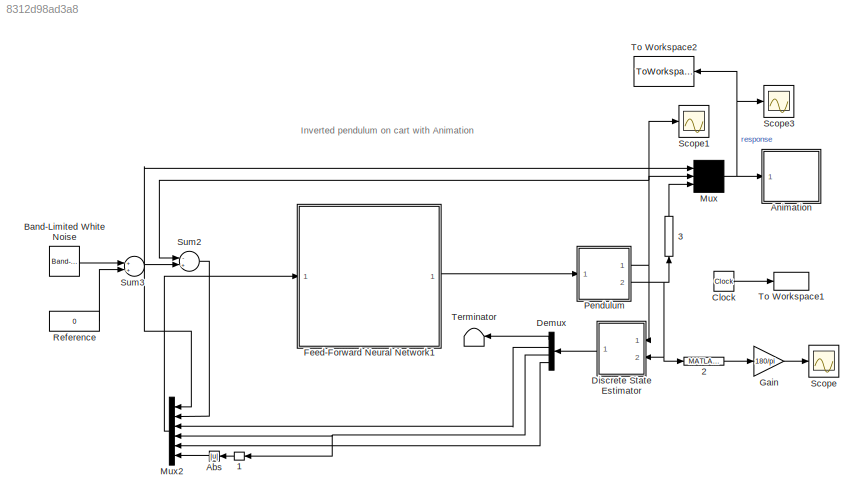
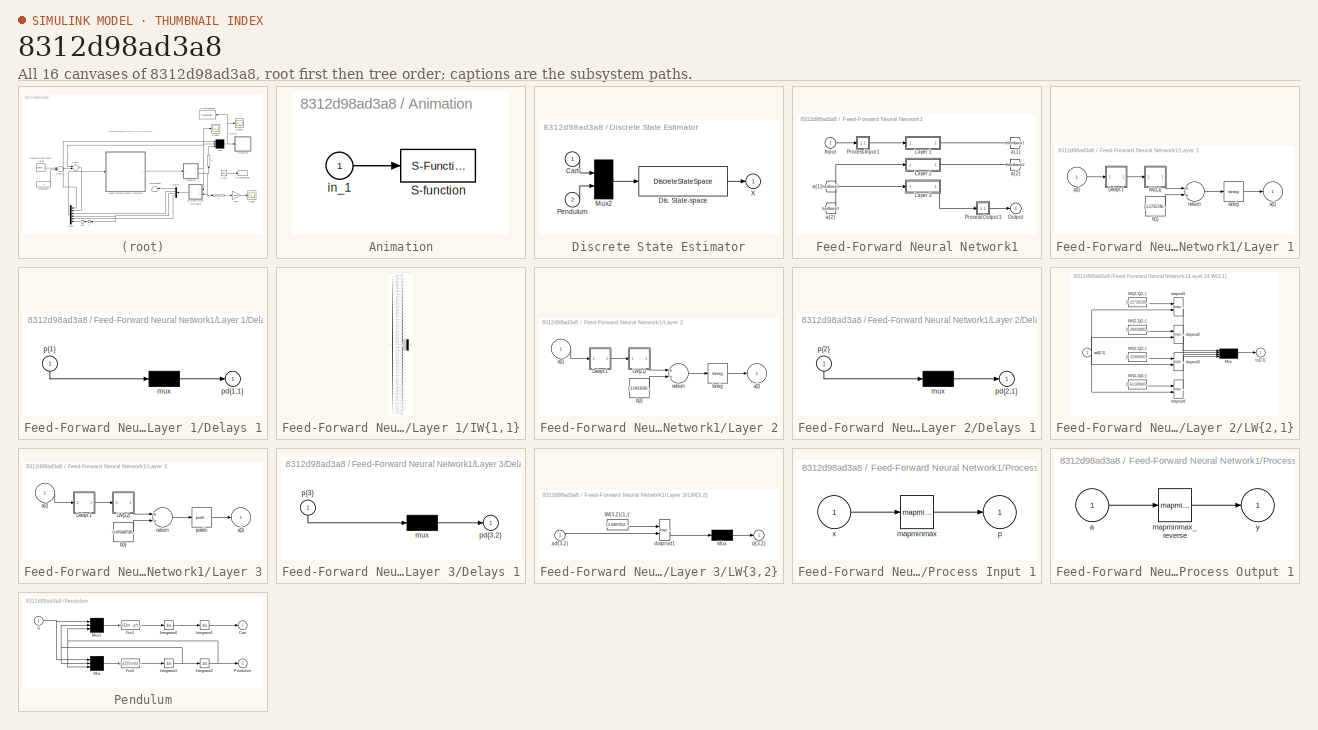
[diagram: thumbnail index - all 16 canvases of the model, root first then tree order]
MODEL slx_8312d98ad3a8
KIND model
BLOCK [MATLABFcn]  1
  MATLABFcn = wrapToPi
  Ports = [1, 1]
BLOCK [MATLABFcn]  2
  MATLABFcn = wrapTo2Pi
  Ports = [1, 1]
BLOCK [MATLABFcn]  3
  MATLABFcn = wrapToPi
  Ports = [1, 1]
BLOCK [Abs] Abs
  SaturateOnIntegerOverflow = off
BLOCK [SubSystem] Animation
  FunctionWithSeparateData = off
  MaskHideContents = off
  MinAlgLoopOccurrences = off
  Opaque = off
  Ports = [1]
  PropExecContextOutsideSubsystem = off
  RTWSystemCode = Auto
  RequestExecContextInheritance = off
BLOCK [S-Function] Animation/S-function
  DeleteFcn = pendan([],[],[],'DeleteBlock');
  EnableBusSupport = off
  FunctionName = pendan
  Parameters = RefBlock
  Ports = [1]
BLOCK [Inport] Animation/in_1
  IconDisplay = Port number
BLOCK [Reference] Band-Limited White Noise  REF=simulink/Sources/Band-Limited
White Noise
  Cov = [noisePower]
  Ports = [0, 1]
  SourceBlock = simulink/Sources/Band-Limited\nWhite Noise
  SourceType = Band-Limited White Noise.
  Ts = 10
  VectorParams1D = on
  seed = [seed]
BLOCK [Clock] Clock
BLOCK [Demux] Demux
  DisplayOption = bar
  Ports = [1, 4]
BLOCK [SubSystem] Discrete State Estimator
  FunctionWithSeparateData = off
  MaskHideContents = off
  MinAlgLoopOccurrences = off
  Opaque = off
  Ports = [2, 1]
  PropExecContextOutsideSubsystem = off
  RTWSystemCode = Auto
  RequestExecContextInheritance = off
BLOCK [Inport] Discrete State Estimator/Cart
  IconDisplay = Port number
BLOCK [DiscreteStateSpace] Discrete State Estimator/Dis. State-space
  A = zeros(2)
  B = -eye(2)/Ts
  C = [0 0; 1 0; 0 0; 0 1]
  D = [1 0; 1/Ts 0; 0 1; 0 1/Ts]
  SampleTime = Ts
BLOCK [Mux] Discrete State Estimator/Mux2
  Inputs = 2
  Ports = [2, 1]
BLOCK [Inport] Discrete State Estimator/Pendulum
  IconDisplay = Port number
  Port = 2
BLOCK [Outport] Discrete State Estimator/X
  IconDisplay = Port number
  InitialOutput = 0
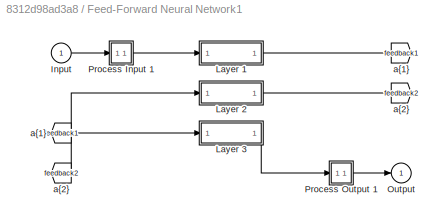
BLOCK [SubSystem] Feed-Forward Neural Network1
  FunctionWithSeparateData = off
  MaskHideContents = off
  MinAlgLoopOccurrences = off
  Opaque = off
  Ports = [1, 1]
  PropExecContextOutsideSubsystem = off
  RTWSystemCode = Auto
  RequestExecContextInheritance = off
BLOCK [From] Feed-Forward Neural Network1/ a{1} 
  GotoTag = feedback1
BLOCK [From] Feed-Forward Neural Network1/ a{2} 
  GotoTag = feedback2
BLOCK [Inport] Feed-Forward Neural Network1/Input
  IconDisplay = Port number
  PortDimensions = 6
BLOCK [SubSystem] Feed-Forward Neural Network1/Layer 1
  FunctionWithSeparateData = off
  MaskHideContents = off
  MinAlgLoopOccurrences = off
  Opaque = off
  Ports = [1, 1]
  PropExecContextOutsideSubsystem = off
  RTWSystemCode = Auto
  RequestExecContextInheritance = off
BLOCK [SubSystem] Feed-Forward Neural Network1/Layer 1/Delays 1
  FunctionWithSeparateData = off
  MaskHideContents = off
  MinAlgLoopOccurrences = off
  Opaque = off
  Ports = [1, 1]
  PropExecContextOutsideSubsystem = off
  RTWSystemCode = Auto
  RequestExecContextInheritance = off
BLOCK [Mux] Feed-Forward Neural Network1/Layer 1/Delays 1/mux
  Inputs = 1
  Ports = [1, 1]
BLOCK [Outport] Feed-Forward Neural Network1/Layer 1/Delays 1/pd{1,1}
  IconDisplay = Port number
BLOCK [Inport] Feed-Forward Neural Network1/Layer 1/Delays 1/p{1}
  IconDisplay = Port number
  PortDimensions = 6
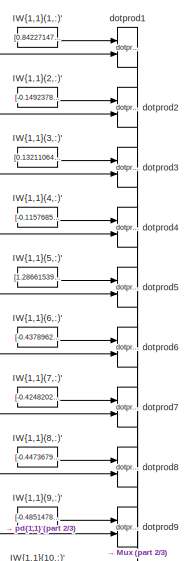
[diagram: Feed-Forward Neural Network1/Layer 1/IW{1,1} - part 1/3, top center region]
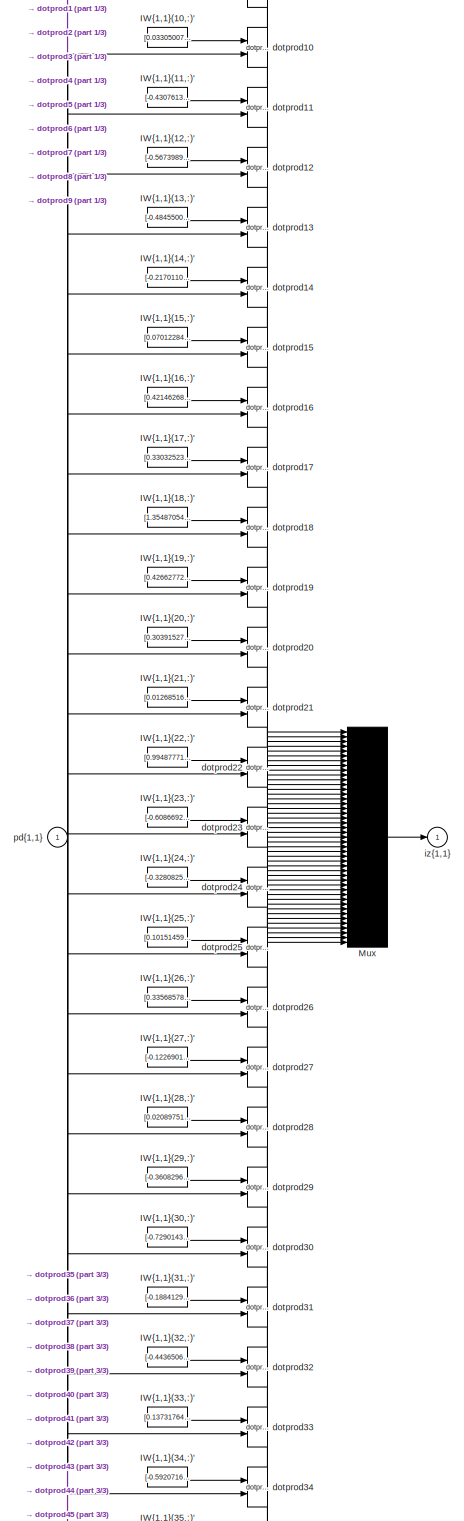
[diagram: Feed-Forward Neural Network1/Layer 1/IW{1,1} - part 2/3, full width, middle band]
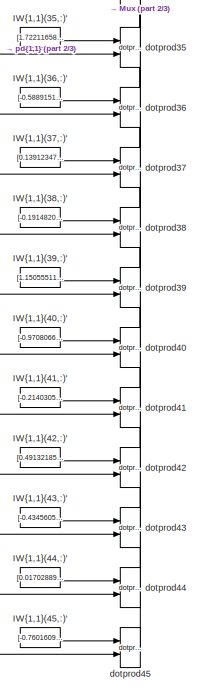
[diagram: Feed-Forward Neural Network1/Layer 1/IW{1,1} - part 3/3, bottom center region]
BLOCK [SubSystem] Feed-Forward Neural Network1/Layer 1/IW{1,1}
  FunctionWithSeparateData = off
  MaskHideContents = off
  MinAlgLoopOccurrences = off
  Opaque = off
  Ports = [1, 1]
  PropExecContextOutsideSubsystem = off
  RTWSystemCode = Auto
  RequestExecContextInheritance = off
BLOCK [Constant] Feed-Forward Neural Network1/Layer 1/IW{1,1}/IW{1,1}(1,:)'
  Value = [0.84227147824054549030137195586576126515865325927734375;0.06487427549836476126099427119697793386876583099365234375;0.16547979048669725354869797229184769093990325927734375;1.102066528263456302028089339728467166423797607421875;0.49259517334991442805147698891232721507549285888671875;-0.272176103875577724000578427876462228596210479736328125]
BLOCK [Constant] Feed-Forward Neural Network1/Layer 1/IW{1,1}/IW{1,1}(10,:)'
  Value = [0.03305007618415702064229577672449522651731967926025390625;1.0170563445854501338772024610079824924468994140625;0.279931382798406624967668676617904566228389739990234375;0.426941937985293173962730861603631637990474700927734375;-1.5403738480250581677211130227078683674335479736328125;-0.91567469693016079190783784724771976470947265625]
BLOCK [Constant] Feed-Forward Neural Network1/Layer 1/IW{1,1}/IW{1,1}(11,:)'
  Value = [-0.430761378274666040244511577839148230850696563720703125;3.4100337146199013460545756970532238483428955078125;-0.9436086074396683454068579521845094859600067138671875;-3.361420006301363283540695192641578614711761474609375;-3.569707650142730503972643418819643557071685791015625;-1.7836434418088156217407913572969846427440643310546875]
BLOCK [Constant] Feed-Forward Neural Network1/Layer 1/IW{1,1}/IW{1,1}(12,:)'
  Value = [-0.5673989996097008603470612797536887228488922119140625;-1.41580995779519458466211290215142071247100830078125;1.9873570195839664886960918011027388274669647216796875;1.3572415823679129243117813530261628329753875732421875;1.0574804788789748943855784091283567249774932861328125;1.2123627937006260513186362004489637911319732666015625]
BLOCK [Constant] Feed-Forward Neural Network1/Layer 1/IW{1,1}/IW{1,1}(13,:)'
  Value = [-0.48455004135934187647904991536051966249942779541015625;-0.7797168963881688785733103941311128437519073486328125;2.498924318770319619176234482438303530216217041015625;-1.7260272854251688112725560131366364657878875732421875;2.327445972270126173242488221148960292339324951171875;-0.05519446440998605762917605943584931083023548126220703125]
BLOCK [Constant] Feed-Forward Neural Network1/Layer 1/IW{1,1}/IW{1,1}(14,:)'
  Value = [-0.21701101301024527945315867327735759317874908447265625;-0.08850209990518463631925527579369372688233852386474609375;1.269844430507898636051322682760655879974365234375;0.8399275689099445774132846054271794855594635009765625;-0.25354230062065064021936677818302996456623077392578125;-0.6468052937445747385680760999093763530254364013671875]
BLOCK [Constant] Feed-Forward Neural Network1/Layer 1/IW{1,1}/IW{1,1}(15,:)'
  Value = [0.07012284715927970257798307329721865244209766387939453125;-0.426352730645800981346127400684054009616374969482421875;-0.462449000988150393798292725477949716150760650634765625;-1.848085497564675439008397006546147167682647705078125;-2.454998577026266115552743940497748553752899169921875;0.17757016677518588920747788506560027599334716796875]
BLOCK [Constant] Feed-Forward Neural Network1/Layer 1/IW{1,1}/IW{1,1}(16,:)'
  Value = [0.4214626870610287401319737909943796694278717041015625;2.093231886567525013020940605201758444309234619140625;0.141001471649424725551824622016283683478832244873046875;0.50265377695913515676551241995184682309627532958984375;-0.44469249994842086071145104142487980425357818603515625;-2.61912069499532496053006980218924582004547119140625]
BLOCK [Constant] Feed-Forward Neural Network1/Layer 1/IW{1,1}/IW{1,1}(17,:)'
  Value = [0.33032523232557242653939511001226492226123809814453125;4.676102860776463643333045183680951595306396484375;-0.55133479214566361026328422667575068771839141845703125;0.41738439187882947489782736738561652600765228271484375;-2.88390872632815131737515912391245365142822265625;0.559538075820381397562641723197884857654571533203125]
BLOCK [Constant] Feed-Forward Neural Network1/Layer 1/IW{1,1}/IW{1,1}(18,:)'
  Value = [1.354870546341602643991564036696217954158782958984375;1.76135701700342650610764394514262676239013671875;0.2498693130782637938924750642399885691702365875244140625;0.018656499881086315018041688063021865673363208770751953125;-0.98870833590241102850626475628814660012722015380859375;-1.356004791091452776896630894043482840061187744140625]
BLOCK [Constant] Feed-Forward Neural Network1/Layer 1/IW{1,1}/IW{1,1}(19,:)'
  Value = [0.42662772549766503349388813148834742605686187744140625;-4.7381878692336609759649945772252976894378662109375;-1.5030142946332050168933847089647315442562103271484375;-2.29340533164774029728505411185324192047119140625;-0.444288784337299291760103869819431565701961517333984375;1.437081857744058055459390743635594844818115234375]
BLOCK [Constant] Feed-Forward Neural Network1/Layer 1/IW{1,1}/IW{1,1}(2,:)'
  Value = [-0.1492378738459924913950516156546655111014842987060546875;-0.58532240022470827245371083336067385971546173095703125;0.462664738325598789980830360946129076182842254638671875;1.91420588056120788422731493483297526836395263671875;-1.443266540980558954032630936126224696636199951171875;0.1477060064733095312572430657382938079535961151123046875]
BLOCK [Constant] Feed-Forward Neural Network1/Layer 1/IW{1,1}/IW{1,1}(20,:)'
  Value = [0.30391527272730389785948545977589674293994903564453125;-0.444187486126631114746743378418614156544208526611328125;-0.022000359677070625841199813521598116494715213775634765625;-0.5972509067636926349820214454666711390018463134765625;2.6133128367743925224431222886778414249420166015625;2.22748035673238309328780815121717751026153564453125]
BLOCK [Constant] Feed-Forward Neural Network1/Layer 1/IW{1,1}/IW{1,1}(21,:)'
  Value = [0.01268516930794892638711957033592625521123409271240234375;4.59450107657331141552958797547034919261932373046875;-0.93306119762650896465316918693133629858493804931640625;-1.6092357280682261233550889301113784313201904296875;-3.214514491239682580925318688969127833843231201171875;-0.6781370341470525087146370424306951463222503662109375]
BLOCK [Constant] Feed-Forward Neural Network1/Layer 1/IW{1,1}/IW{1,1}(22,:)'
  Value = [0.994877715005721530161508781020529568195343017578125;-2.5852327063540183615941714379005134105682373046875;-0.4537861220633285785908128673327155411243438720703125;0.74245142888689319438100255865720100700855255126953125;-1.833503204946538289732416160404682159423828125;15.454823990822948331924635567702353000640869140625]
BLOCK [Constant] Feed-Forward Neural Network1/Layer 1/IW{1,1}/IW{1,1}(23,:)'
  Value = [-0.60866929997868346458034238821710459887981414794921875;-0.97057598832021951817949911855976097285747528076171875;-1.41630044446994940443573796073906123638153076171875;1.6145332171968866941114129076595418155193328857421875;1.9343143141262479911546279254253022372722625732421875;3.68592187714530350461927810101769864559173583984375]
BLOCK [Constant] Feed-Forward Neural Network1/Layer 1/IW{1,1}/IW{1,1}(24,:)'
  Value = [-0.32808252806051185768154709876398555934429168701171875;-3.42123638500376170412664578179828822612762451171875;-0.904267633019632643964769158628769218921661376953125;0.74638609472593231419779158386518247425556182861328125;1.925961651847787781122178785153664648532867431640625;-0.1414651721659340444237074052580283023416996002197265625]
BLOCK [Constant] Feed-Forward Neural Network1/Layer 1/IW{1,1}/IW{1,1}(25,:)'
  Value = [0.1015145952320345157371406230595312081277370452880859375;-0.332514223086164684151100345843588002026081085205078125;2.281582187239048042926015114062465727329254150390625;0.83332205829804639751756667465087957680225372314453125;-1.74625792582558414522964085335843265056610107421875;0.9113021358531601112673570241895504295825958251953125]
BLOCK [Constant] Feed-Forward Neural Network1/Layer 1/IW{1,1}/IW{1,1}(26,:)'
  Value = [0.33568578942289628574968674001866020262241363525390625;2.3543740308923606363578073796816170215606689453125;1.351961238632386486102632261463440954685211181640625;1.7606296753255026299456176275270991027355194091796875;-0.41700357843252511269582782915676943957805633544921875;1.0395595474903343014005940858623944222927093505859375]
BLOCK [Constant] Feed-Forward Neural Network1/Layer 1/IW{1,1}/IW{1,1}(27,:)'
  Value = [-0.122690101827504116638323239385499618947505950927734375;-4.38180574480759066346990948659367859363555908203125;-0.93975792619900133662014241053839214146137237548828125;-1.477176900329489672714089465443976223468780517578125;-0.1684666325636204053939337654810515232384204864501953125;0.372092735345911085342862634206539951264858245849609375]
BLOCK [Constant] Feed-Forward Neural Network1/Layer 1/IW{1,1}/IW{1,1}(28,:)'
  Value = [0.0208975155955787202100015775840802234597504138946533203125;1.251660217050768242330605062306858599185943603515625;1.1691366816001658168744370414060540497303009033203125;2.7047155750761060488684961455874145030975341796875;2.570977437632034234837874464574269950389862060546875;-0.1415574810387700832592372535145841538906097412109375]
BLOCK [Constant] Feed-Forward Neural Network1/Layer 1/IW{1,1}/IW{1,1}(29,:)'
  Value = [-0.360829663811210121782124815581482835114002227783203125;-0.88319440128383386312549419017159380018711090087890625;3.3498526307737837015565673937089741230010986328125;1.233805697106404419827185847680084407329559326171875;-0.10885207267648533413506584111019037663936614990234375;-0.7884649843305184813146979649900458753108978271484375]
BLOCK [Constant] Feed-Forward Neural Network1/Layer 1/IW{1,1}/IW{1,1}(3,:)'
  Value = [0.1321106469977538500071290172854787670075893402099609375;-0.397375057727925751205333426696597598493099212646484375;-0.042944704991947350858350063163015875034034252166748046875;1.599760712104874027517098511452786624431610107421875;0.2558827644516330490631617067265324294567108154296875;0.4060595418232446629502874202444218099117279052734375]
BLOCK [Constant] Feed-Forward Neural Network1/Layer 1/IW{1,1}/IW{1,1}(30,:)'
  Value = [-0.7290143026208630860907078385935164988040924072265625;-1.506358840224149897579764001420699059963226318359375;-0.47719700980047574656595088526955805718898773193359375;0.3448008435778924241077447732095606625080108642578125;0.06901407753184805871082829753504483960568904876708984375;2.197857444031098506087573696277104318141937255859375]
BLOCK [Constant] Feed-Forward Neural Network1/Layer 1/IW{1,1}/IW{1,1}(31,:)'
  Value = [-0.18841291576789931383473231107927858829498291015625;-1.883810688531983856819351785816252231597900390625;-1.528012023680080933019098665681667625904083251953125;-2.989909602536509058978708708309568464756011962890625;-1.5647943251507172579550797308911569416522979736328125;-0.47964740637355018915144455604604445397853851318359375]
BLOCK [Constant] Feed-Forward Neural Network1/Layer 1/IW{1,1}/IW{1,1}(32,:)'
  Value = [-0.443650669627721538912368259843788109719753265380859375;-1.4009311657658527483505395139218308031558990478515625;-2.2726150371821116635828730068169534206390380859375;-0.2245478230346547865448059155824012123048305511474609375;-0.1355220260937668175227344136146712116897106170654296875;1.084261365339057814338730167946778237819671630859375]
BLOCK [Constant] Feed-Forward Neural Network1/Layer 1/IW{1,1}/IW{1,1}(33,:)'
  Value = [0.137317649806484365360148558465880341827869415283203125;-0.55945470154716614441525734946480952203273773193359375;3.618543150025871124597642847220413386821746826171875;3.33383798934054720319863918120972812175750732421875;-0.822871208637542483899096623645164072513580322265625;1.5973819108851479153798891275073401629924774169921875]
BLOCK [Constant] Feed-Forward Neural Network1/Layer 1/IW{1,1}/IW{1,1}(34,:)'
  Value = [-0.592071669418371637760856174281798303127288818359375;-0.83421267712764202162389892691862769424915313720703125;0.86348993686630171051632487433380447328090667724609375;2.150819845230817151104929507710039615631103515625;2.262924582499760361997687141411006450653076171875;-0.0255007571660771405197554173582830117084085941314697265625]
BLOCK [Constant] Feed-Forward Neural Network1/Layer 1/IW{1,1}/IW{1,1}(35,:)'
  Value = [1.7221165898979722275186077240505255758762359619140625;3.29144936960714229456925750127993524074554443359375;-0.70751409013431487693424060125835239887237548828125;-1.0795418691169966773912847202154807746410369873046875;-1.105857120792361314443041919730603694915771484375;-1.502964798220688180663273669779300689697265625]
BLOCK [Constant] Feed-Forward Neural Network1/Layer 1/IW{1,1}/IW{1,1}(36,:)'
  Value = [-0.58891512772877174786145815232885070145130157470703125;-4.9511689644958014611120233894325792789459228515625;-2.23201641639018699692087466246448457241058349609375;1.0115433068301593610982536119990982115268707275390625;2.87365060958359297416109257028438150882720947265625;-0.22953357547706787489261159862508065998554229736328125]
BLOCK [Constant] Feed-Forward Neural Network1/Layer 1/IW{1,1}/IW{1,1}(37,:)'
  Value = [0.139123470369716617511812728480435907840728759765625;-1.289834396248152881270243597100488841533660888671875;0.2722104703413099624498272532946430146694183349609375;0.261716197281477269687144371346221305429935455322265625;-0.797707282571357811917778235510922968387603759765625;0.57652892523213428166428684562561102211475372314453125]
BLOCK [Constant] Feed-Forward Neural Network1/Layer 1/IW{1,1}/IW{1,1}(38,:)'
  Value = [-0.1914820890937098674111638274553115479648113250732421875;7.38545949292279413356254735845141112804412841796875;-0.487500818685457637524649499027873389422893524169921875;0.1196565559715188076239655856625176966190338134765625;0.1946593969480634456203915760852396488189697265625;0.347467836883841030282127348982612602412700653076171875]
BLOCK [Constant] Feed-Forward Neural Network1/Layer 1/IW{1,1}/IW{1,1}(39,:)'
  Value = [1.1505551143686323367631985092884860932826995849609375;0.670927704314908002203310388722456991672515869140625;-0.4107825063660275333177196444012224674224853515625;0.34580825776955259609479753635241650044918060302734375;0.273933720244461442749894786174991168081760406494140625;0.10240294396416320388265575047626043669879436492919921875]
BLOCK [Constant] Feed-Forward Neural Network1/Layer 1/IW{1,1}/IW{1,1}(4,:)'
  Value = [-0.11576850141052537346286754882385139353573322296142578125;-4.54558036892190120425993882236070930957794189453125;-0.092313141273975052314426648081280291080474853515625;0.12126186077174672117706677454407326877117156982421875;0.1615396998211687529245494943097583018243312835693359375;0.10394610992355980683132798958467901684343814849853515625]
BLOCK [Constant] Feed-Forward Neural Network1/Layer 1/IW{1,1}/IW{1,1}(40,:)'
  Value = [-0.9708066404631108259337679555756039917469024658203125;-0.72668604922306612170501693981350399553775787353515625;0.891458005586482915560964102041907608509063720703125;1.253717701823703567498569100280292332172393798828125;0.8892087248039166613722272813902236521244049072265625;0.1584588009797140983891949872486293315887451171875]
BLOCK [Constant] Feed-Forward Neural Network1/Layer 1/IW{1,1}/IW{1,1}(41,:)'
  Value = [-0.214030587285944040587537529063411056995391845703125;0.81855538866011212650874995233607478439807891845703125;0.5267935584121830050463586303521879017353057861328125;-0.369976614021223060291276851785369217395782470703125;0.75418730631755803717197750302148051559925079345703125;0.62987453426894701724592096070409752428531646728515625]
BLOCK [Constant] Feed-Forward Neural Network1/Layer 1/IW{1,1}/IW{1,1}(42,:)'
  Value = [0.491321854398087454196542012141435407102108001708984375;-0.6243604795551085384630596308852545917034149169921875;-0.8073042670592747160895896740839816629886627197265625;-0.4604107257932936736466444926918484270572662353515625;-0.2307547176901788843483842583736986853182315826416015625;-0.11031798080602052414267433277927921153604984283447265625]
BLOCK [Constant] Feed-Forward Neural Network1/Layer 1/IW{1,1}/IW{1,1}(43,:)'
  Value = [-0.434560541377054743161778560534003190696239471435546875;-0.7195817968029818434416711170342750847339630126953125;2.719625083265178044911181132192723453044891357421875;-0.9651400988834157868012653125333599746227264404296875;-1.8899754067195717599503268502303399145603179931640625;0.2358315585990613250100267350717331282794475555419921875]
BLOCK [Constant] Feed-Forward Neural Network1/Layer 1/IW{1,1}/IW{1,1}(44,:)'
  Value = [0.0170288927643164507419459852144427713938057422637939453125;-1.096271515043029776137473163544200360774993896484375;-0.65716506950018771515686921702581457793712615966796875;-2.615029860688120155742808492504991590976715087890625;0.185285386266270502009234633078449405729770660400390625;0.6822539905081999034308637419599108397960662841796875]
BLOCK [Constant] Feed-Forward Neural Network1/Layer 1/IW{1,1}/IW{1,1}(45,:)'
  Value = [-0.76016098814205346201333668432198464870452880859375;0.45662035591078098395456663638469763100147247314453125;-0.69560184134009650502861177301383577287197113037109375;0.05786432331366657411120257847869652323424816131591796875;-0.415050499588511423443293324453406967222690582275390625;0.85467177567879326627320324405445717275142669677734375]
BLOCK [Constant] Feed-Forward Neural Network1/Layer 1/IW{1,1}/IW{1,1}(5,:)'
  Value = [1.286615392073253705262914081686176359653472900390625;-0.63236160984545997099104397420887835323810577392578125;1.0393417445908534890719465693109668791294097900390625;-1.0017921343315656645955868953024037182331085205078125;1.2961703714111709739853495193528942763805389404296875;0.69475220751266686392000337946228682994842529296875]
BLOCK [Constant] Feed-Forward Neural Network1/Layer 1/IW{1,1}/IW{1,1}(6,:)'
  Value = [-0.437896259415833932759909430387779138982295989990234375;-0.055678103401010682615979163756492198444902896881103515625;0.86210316000251119294972568241064436733722686767578125;-1.2571776590128809214519378656405024230480194091796875;1.91653411562610020979491309844888746738433837890625;-1.175738488899714440094612655229866504669189453125]
BLOCK [Constant] Feed-Forward Neural Network1/Layer 1/IW{1,1}/IW{1,1}(7,:)'
  Value = [-0.424820263545935716820167726837098598480224609375;0.0921595173958678903769481394192553125321865081787109375;1.5124409214377152466113329865038394927978515625;2.25606477612466083115805304259993135929107666015625;0.8804375291908701495202649311977438628673553466796875;-0.493414946284316979774331457520020194351673126220703125]
BLOCK [Constant] Feed-Forward Neural Network1/Layer 1/IW{1,1}/IW{1,1}(8,:)'
  Value = [-0.447367958470151594330133093535550870001316070556640625;-0.57162951790862592815756215713918209075927734375;1.068904226705254867368921622983179986476898193359375;-0.36300666989660701489128769026137888431549072265625;0.0233603725425067278165247586230179877020418643951416015625;0.371345504439733409274282394108013249933719635009765625]
BLOCK [Constant] Feed-Forward Neural Network1/Layer 1/IW{1,1}/IW{1,1}(9,:)'
  Value = [-0.485147821115319788365383146810927428305149078369140625;-1.5183877630525406399186749695218168199062347412109375;-3.14651794382773264402430868358351290225982666015625;-1.27616307751824020755293531692586839199066162109375;0.7526174427896663576831315367599017918109893798828125;1.599932614473981384861644983175210654735565185546875]
BLOCK [Mux] Feed-Forward Neural Network1/Layer 1/IW{1,1}/Mux
  Inputs = 45
  Ports = [45, 1]
BLOCK [Reference] Feed-Forward Neural Network1/Layer 1/IW{1,1}/dotprod1  REF=neural/Weight Functions/dotprod
  Ports = [2, 1]
  SourceBlock = neural/Weight Functions/dotprod
  SourceType = DOTPROD
BLOCK [Reference] Feed-Forward Neural Network1/Layer 1/IW{1,1}/dotprod10  REF=neural/Weight Functions/dotprod
  Ports = [2, 1]
  SourceBlock = neural/Weight Functions/dotprod
  SourceType = DOTPROD
BLOCK [Reference] Feed-Forward Neural Network1/Layer 1/IW{1,1}/dotprod11  REF=neural/Weight Functions/dotprod
  Ports = [2, 1]
  SourceBlock = neural/Weight Functions/dotprod
  SourceType = DOTPROD
BLOCK [Reference] Feed-Forward Neural Network1/Layer 1/IW{1,1}/dotprod12  REF=neural/Weight Functions/dotprod
  Ports = [2, 1]
  SourceBlock = neural/Weight Functions/dotprod
  SourceType = DOTPROD
BLOCK [Reference] Feed-Forward Neural Network1/Layer 1/IW{1,1}/dotprod13  REF=neural/Weight Functions/dotprod
  Ports = [2, 1]
  SourceBlock = neural/Weight Functions/dotprod
  SourceType = DOTPROD
BLOCK [Reference] Feed-Forward Neural Network1/Layer 1/IW{1,1}/dotprod14  REF=neural/Weight Functions/dotprod
  Ports = [2, 1]
  SourceBlock = neural/Weight Functions/dotprod
  SourceType = DOTPROD
BLOCK [Reference] Feed-Forward Neural Network1/Layer 1/IW{1,1}/dotprod15  REF=neural/Weight Functions/dotprod
  Ports = [2, 1]
  SourceBlock = neural/Weight Functions/dotprod
  SourceType = DOTPROD
BLOCK [Reference] Feed-Forward Neural Network1/Layer 1/IW{1,1}/dotprod16  REF=neural/Weight Functions/dotprod
  Ports = [2, 1]
  SourceBlock = neural/Weight Functions/dotprod
  SourceType = DOTPROD
BLOCK [Reference] Feed-Forward Neural Network1/Layer 1/IW{1,1}/dotprod17  REF=neural/Weight Functions/dotprod
  Ports = [2, 1]
  SourceBlock = neural/Weight Functions/dotprod
  SourceType = DOTPROD
BLOCK [Reference] Feed-Forward Neural Network1/Layer 1/IW{1,1}/dotprod18  REF=neural/Weight Functions/dotprod
  Ports = [2, 1]
  SourceBlock = neural/Weight Functions/dotprod
  SourceType = DOTPROD
BLOCK [Reference] Feed-Forward Neural Network1/Layer 1/IW{1,1}/dotprod19  REF=neural/Weight Functions/dotprod
  Ports = [2, 1]
  SourceBlock = neural/Weight Functions/dotprod
  SourceType = DOTPROD
BLOCK [Reference] Feed-Forward Neural Network1/Layer 1/IW{1,1}/dotprod2  REF=neural/Weight Functions/dotprod
  Ports = [2, 1]
  SourceBlock = neural/Weight Functions/dotprod
  SourceType = DOTPROD
BLOCK [Reference] Feed-Forward Neural Network1/Layer 1/IW{1,1}/dotprod20  REF=neural/Weight Functions/dotprod
  Ports = [2, 1]
  SourceBlock = neural/Weight Functions/dotprod
  SourceType = DOTPROD
BLOCK [Reference] Feed-Forward Neural Network1/Layer 1/IW{1,1}/dotprod21  REF=neural/Weight Functions/dotprod
  Ports = [2, 1]
  SourceBlock = neural/Weight Functions/dotprod
  SourceType = DOTPROD
BLOCK [Reference] Feed-Forward Neural Network1/Layer 1/IW{1,1}/dotprod22  REF=neural/Weight Functions/dotprod
  Ports = [2, 1]
  SourceBlock = neural/Weight Functions/dotprod
  SourceType = DOTPROD
BLOCK [Reference] Feed-Forward Neural Network1/Layer 1/IW{1,1}/dotprod23  REF=neural/Weight Functions/dotprod
  Ports = [2, 1]
  SourceBlock = neural/Weight Functions/dotprod
  SourceType = DOTPROD
BLOCK [Reference] Feed-Forward Neural Network1/Layer 1/IW{1,1}/dotprod24  REF=neural/Weight Functions/dotprod
  Ports = [2, 1]
  SourceBlock = neural/Weight Functions/dotprod
  SourceType = DOTPROD
BLOCK [Reference] Feed-Forward Neural Network1/Layer 1/IW{1,1}/dotprod25  REF=neural/Weight Functions/dotprod
  Ports = [2, 1]
  SourceBlock = neural/Weight Functions/dotprod
  SourceType = DOTPROD
BLOCK [Reference] Feed-Forward Neural Network1/Layer 1/IW{1,1}/dotprod26  REF=neural/Weight Functions/dotprod
  Ports = [2, 1]
  SourceBlock = neural/Weight Functions/dotprod
  SourceType = DOTPROD
BLOCK [Reference] Feed-Forward Neural Network1/Layer 1/IW{1,1}/dotprod27  REF=neural/Weight Functions/dotprod
  Ports = [2, 1]
  SourceBlock = neural/Weight Functions/dotprod
  SourceType = DOTPROD
BLOCK [Reference] Feed-Forward Neural Network1/Layer 1/IW{1,1}/dotprod28  REF=neural/Weight Functions/dotprod
  Ports = [2, 1]
  SourceBlock = neural/Weight Functions/dotprod
  SourceType = DOTPROD
BLOCK [Reference] Feed-Forward Neural Network1/Layer 1/IW{1,1}/dotprod29  REF=neural/Weight Functions/dotprod
  Ports = [2, 1]
  SourceBlock = neural/Weight Functions/dotprod
  SourceType = DOTPROD
BLOCK [Reference] Feed-Forward Neural Network1/Layer 1/IW{1,1}/dotprod3  REF=neural/Weight Functions/dotprod
  Ports = [2, 1]
  SourceBlock = neural/Weight Functions/dotprod
  SourceType = DOTPROD
BLOCK [Reference] Feed-Forward Neural Network1/Layer 1/IW{1,1}/dotprod30  REF=neural/Weight Functions/dotprod
  Ports = [2, 1]
  SourceBlock = neural/Weight Functions/dotprod
  SourceType = DOTPROD
BLOCK [Reference] Feed-Forward Neural Network1/Layer 1/IW{1,1}/dotprod31  REF=neural/Weight Functions/dotprod
  Ports = [2, 1]
  SourceBlock = neural/Weight Functions/dotprod
  SourceType = DOTPROD
BLOCK [Reference] Feed-Forward Neural Network1/Layer 1/IW{1,1}/dotprod32  REF=neural/Weight Functions/dotprod
  Ports = [2, 1]
  SourceBlock = neural/Weight Functions/dotprod
  SourceType = DOTPROD
BLOCK [Reference] Feed-Forward Neural Network1/Layer 1/IW{1,1}/dotprod33  REF=neural/Weight Functions/dotprod
  Ports = [2, 1]
  SourceBlock = neural/Weight Functions/dotprod
  SourceType = DOTPROD
BLOCK [Reference] Feed-Forward Neural Network1/Layer 1/IW{1,1}/dotprod34  REF=neural/Weight Functions/dotprod
  Ports = [2, 1]
  SourceBlock = neural/Weight Functions/dotprod
  SourceType = DOTPROD
BLOCK [Reference] Feed-Forward Neural Network1/Layer 1/IW{1,1}/dotprod35  REF=neural/Weight Functions/dotprod
  Ports = [2, 1]
  SourceBlock = neural/Weight Functions/dotprod
  SourceType = DOTPROD
BLOCK [Reference] Feed-Forward Neural Network1/Layer 1/IW{1,1}/dotprod36  REF=neural/Weight Functions/dotprod
  Ports = [2, 1]
  SourceBlock = neural/Weight Functions/dotprod
  SourceType = DOTPROD
BLOCK [Reference] Feed-Forward Neural Network1/Layer 1/IW{1,1}/dotprod37  REF=neural/Weight Functions/dotprod
  Ports = [2, 1]
  SourceBlock = neural/Weight Functions/dotprod
  SourceType = DOTPROD
BLOCK [Reference] Feed-Forward Neural Network1/Layer 1/IW{1,1}/dotprod38  REF=neural/Weight Functions/dotprod
  Ports = [2, 1]
  SourceBlock = neural/Weight Functions/dotprod
  SourceType = DOTPROD
BLOCK [Reference] Feed-Forward Neural Network1/Layer 1/IW{1,1}/dotprod39  REF=neural/Weight Functions/dotprod
  Ports = [2, 1]
  SourceBlock = neural/Weight Functions/dotprod
  SourceType = DOTPROD
BLOCK [Reference] Feed-Forward Neural Network1/Layer 1/IW{1,1}/dotprod4  REF=neural/Weight Functions/dotprod
  Ports = [2, 1]
  SourceBlock = neural/Weight Functions/dotprod
  SourceType = DOTPROD
BLOCK [Reference] Feed-Forward Neural Network1/Layer 1/IW{1,1}/dotprod40  REF=neural/Weight Functions/dotprod
  Ports = [2, 1]
  SourceBlock = neural/Weight Functions/dotprod
  SourceType = DOTPROD
BLOCK [Reference] Feed-Forward Neural Network1/Layer 1/IW{1,1}/dotprod41  REF=neural/Weight Functions/dotprod
  Ports = [2, 1]
  SourceBlock = neural/Weight Functions/dotprod
  SourceType = DOTPROD
BLOCK [Reference] Feed-Forward Neural Network1/Layer 1/IW{1,1}/dotprod42  REF=neural/Weight Functions/dotprod
  Ports = [2, 1]
  SourceBlock = neural/Weight Functions/dotprod
  SourceType = DOTPROD
BLOCK [Reference] Feed-Forward Neural Network1/Layer 1/IW{1,1}/dotprod43  REF=neural/Weight Functions/dotprod
  Ports = [2, 1]
  SourceBlock = neural/Weight Functions/dotprod
  SourceType = DOTPROD
BLOCK [Reference] Feed-Forward Neural Network1/Layer 1/IW{1,1}/dotprod44  REF=neural/Weight Functions/dotprod
  Ports = [2, 1]
  SourceBlock = neural/Weight Functions/dotprod
  SourceType = DOTPROD
BLOCK [Reference] Feed-Forward Neural Network1/Layer 1/IW{1,1}/dotprod45  REF=neural/Weight Functions/dotprod
  Ports = [2, 1]
  SourceBlock = neural/Weight Functions/dotprod
  SourceType = DOTPROD
BLOCK [Reference] Feed-Forward Neural Network1/Layer 1/IW{1,1}/dotprod5  REF=neural/Weight Functions/dotprod
  Ports = [2, 1]
  SourceBlock = neural/Weight Functions/dotprod
  SourceType = DOTPROD
BLOCK [Reference] Feed-Forward Neural Network1/Layer 1/IW{1,1}/dotprod6  REF=neural/Weight Functions/dotprod
  Ports = [2, 1]
  SourceBlock = neural/Weight Functions/dotprod
  SourceType = DOTPROD
BLOCK [Reference] Feed-Forward Neural Network1/Layer 1/IW{1,1}/dotprod7  REF=neural/Weight Functions/dotprod
  Ports = [2, 1]
  SourceBlock = neural/Weight Functions/dotprod
  SourceType = DOTPROD
BLOCK [Reference] Feed-Forward Neural Network1/Layer 1/IW{1,1}/dotprod8  REF=neural/Weight Functions/dotprod
  Ports = [2, 1]
  SourceBlock = neural/Weight Functions/dotprod
  SourceType = DOTPROD
BLOCK [Reference] Feed-Forward Neural Network1/Layer 1/IW{1,1}/dotprod9  REF=neural/Weight Functions/dotprod
  Ports = [2, 1]
  SourceBlock = neural/Weight Functions/dotprod
  SourceType = DOTPROD
BLOCK [Outport] Feed-Forward Neural Network1/Layer 1/IW{1,1}/iz{1,1}
  IconDisplay = Port number
BLOCK [Inport] Feed-Forward Neural Network1/Layer 1/IW{1,1}/pd{1,1}
  IconDisplay = Port number
  PortDimensions = 6
BLOCK [Outport] Feed-Forward Neural Network1/Layer 1/a{1}
  IconDisplay = Port number
  InitialOutput = [0;0;0;0;0;0;0;0;0;0;0;0;0;0;0;0;0;0;0;0;0;0;0;0;0;0;0;0;0;0;0;0;0;0;0;0;0;0;0;0;0;0;0;0;0]
BLOCK [Constant] Feed-Forward Neural Network1/Layer 1/b{1}
  Value = [-1.5715746942816177789126186326029710471630096435546875;-0.50152890121026005854076856849133037030696868896484375;-1.139479309577863919145102045149542391300201416015625;0.51070837639813504438279778696596622467041015625;-1.2774780625891162255669541991665028035640716552734375;0.51798814429773931689027222091681323945522308349609375;1.3234881466333814348246278314036317169666290283203125;-1.14146092889...<+2079ch>
BLOCK [Sum] Feed-Forward Neural Network1/Layer 1/netsum
  Inputs = 2
  Ports = [2, 1]
BLOCK [Inport] Feed-Forward Neural Network1/Layer 1/p{1}
  IconDisplay = Port number
  PortDimensions = 6
BLOCK [Reference] Feed-Forward Neural Network1/Layer 1/tansig  REF=neural/Transfer Functions/tansig
  Ports = [1, 1]
  SourceBlock = neural/Transfer Functions/tansig
  SourceType = TANSIG
BLOCK [SubSystem] Feed-Forward Neural Network1/Layer 2
  FunctionWithSeparateData = off
  MaskHideContents = off
  MinAlgLoopOccurrences = off
  Opaque = off
  Ports = [1, 1]
  PropExecContextOutsideSubsystem = off
  RTWSystemCode = Auto
  RequestExecContextInheritance = off
BLOCK [SubSystem] Feed-Forward Neural Network1/Layer 2/Delays 1
  FunctionWithSeparateData = off
  MaskHideContents = off
  MinAlgLoopOccurrences = off
  Opaque = off
  Ports = [1, 1]
  PropExecContextOutsideSubsystem = off
  RTWSystemCode = Auto
  RequestExecContextInheritance = off
BLOCK [Mux] Feed-Forward Neural Network1/Layer 2/Delays 1/mux
  Inputs = 1
  Ports = [1, 1]
BLOCK [Outport] Feed-Forward Neural Network1/Layer 2/Delays 1/pd{2,1}
  IconDisplay = Port number
BLOCK [Inport] Feed-Forward Neural Network1/Layer 2/Delays 1/p{2}
  IconDisplay = Port number
  PortDimensions = 45
BLOCK [SubSystem] Feed-Forward Neural Network1/Layer 2/LW{2,1}
  FunctionWithSeparateData = off
  MaskHideContents = off
  MinAlgLoopOccurrences = off
  Opaque = off
  Ports = [1, 1]
  PropExecContextOutsideSubsystem = off
  RTWSystemCode = Auto
  RequestExecContextInheritance = off
BLOCK [Constant] Feed-Forward Neural Network1/Layer 2/LW{2,1}/IW{2,1}(1,:)'
  Value = [0.2273053064856317140307595536796725355088710784912109375;1.051125980489695077579881399287842214107513427734375;1.204732185290700474666891750530339777469635009765625;-0.025018572614739810477946235778290429152548313140869140625;-0.00749627314337295534707461541756856604479253292083740234375;-0.5694412335341618724982026833458803594112396240234375;0.675417918652810644886130830855108797550201416015625...<+2119ch>
BLOCK [Constant] Feed-Forward Neural Network1/Layer 2/LW{2,1}/IW{2,1}(2,:)'
  Value = [0.289189858267777155642619391073822043836116790771484375;1.908173959396009866651411357452161610126495361328125;-0.44814312342037265768368570206803269684314727783203125;-0.33988441742216235486040432078880257904529571533203125;0.44428445852824205442033189683570526540279388427734375;0.01841712340100175315793507024864084087312221527099609375;1.321884955121377824838191372691653668880462646484375;0.598...<+2113ch>
BLOCK [Constant] Feed-Forward Neural Network1/Layer 2/LW{2,1}/IW{2,1}(3,:)'
  Value = [0.318906912280309040585990487670642323791980743408203125;-0.4473631263362047860709935775958001613616943359375;0.38862506300972288197925763597595505416393280029296875;-0.212637407641679099246090345332049764692783355712890625;-1.1609584361917628658744661152013577520847320556640625;0.960143937663552993200255514238961040973663330078125;-0.08321205095428797771095474899993860162794589996337890625;-0.55...<+2113ch>
BLOCK [Constant] Feed-Forward Neural Network1/Layer 2/LW{2,1}/IW{2,1}(4,:)'
  Value = [0.6116944578958187772599330855882726609706878662109375;0.546790257442375970953207797720097005367279052734375;-1.199538468039558214428552673780359327793121337890625;-0.868485284702682935886741688591428101062774658203125;-1.0764968839797186550555352368974126875400543212890625;-0.960256331603024815279923132038675248622894287109375;2.261189207553360613900395037489943206310272216796875;0.3807650872693...<+2104ch>
BLOCK [Mux] Feed-Forward Neural Network1/Layer 2/LW{2,1}/Mux
  Ports = [4, 1]
BLOCK [Inport] Feed-Forward Neural Network1/Layer 2/LW{2,1}/ad{2,1}
  IconDisplay = Port number
  PortDimensions = 45
BLOCK [Reference] Feed-Forward Neural Network1/Layer 2/LW{2,1}/dotprod1  REF=neural/Weight Functions/dotprod
  Ports = [2, 1]
  SourceBlock = neural/Weight Functions/dotprod
  SourceType = DOTPROD
BLOCK [Reference] Feed-Forward Neural Network1/Layer 2/LW{2,1}/dotprod2  REF=neural/Weight Functions/dotprod
  Ports = [2, 1]
  SourceBlock = neural/Weight Functions/dotprod
  SourceType = DOTPROD
BLOCK [Reference] Feed-Forward Neural Network1/Layer 2/LW{2,1}/dotprod3  REF=neural/Weight Functions/dotprod
  Ports = [2, 1]
  SourceBlock = neural/Weight Functions/dotprod
  SourceType = DOTPROD
BLOCK [Reference] Feed-Forward Neural Network1/Layer 2/LW{2,1}/dotprod4  REF=neural/Weight Functions/dotprod
  Ports = [2, 1]
  SourceBlock = neural/Weight Functions/dotprod
  SourceType = DOTPROD
BLOCK [Outport] Feed-Forward Neural Network1/Layer 2/LW{2,1}/lz{2,1}
  IconDisplay = Port number
BLOCK [Inport] Feed-Forward Neural Network1/Layer 2/a{1} 
  IconDisplay = Port number
  PortDimensions = 45
BLOCK [Outport] Feed-Forward Neural Network1/Layer 2/a{2}
  IconDisplay = Port number
  InitialOutput = [0;0;0;0]
BLOCK [Constant] Feed-Forward Neural Network1/Layer 2/b{2}
  Value = [-1.0411626124591915054651281025144271552562713623046875;-0.55355280570014009366985874294186942279338836669921875;0.2230499979289526091275064345609280280768871307373046875;1.07918154969157153999503861996345221996307373046875]
BLOCK [Sum] Feed-Forward Neural Network1/Layer 2/netsum
  Inputs = 2
  Ports = [2, 1]
BLOCK [Reference] Feed-Forward Neural Network1/Layer 2/tansig  REF=neural/Transfer Functions/tansig
  Ports = [1, 1]
  SourceBlock = neural/Transfer Functions/tansig
  SourceType = TANSIG
BLOCK [SubSystem] Feed-Forward Neural Network1/Layer 3
  FunctionWithSeparateData = off
  MaskHideContents = off
  MinAlgLoopOccurrences = off
  Opaque = off
  Ports = [1, 1]
  PropExecContextOutsideSubsystem = off
  RTWSystemCode = Auto
  RequestExecContextInheritance = off
BLOCK [SubSystem] Feed-Forward Neural Network1/Layer 3/Delays 1
  FunctionWithSeparateData = off
  MaskHideContents = off
  MinAlgLoopOccurrences = off
  Opaque = off
  Ports = [1, 1]
  PropExecContextOutsideSubsystem = off
  RTWSystemCode = Auto
  RequestExecContextInheritance = off
BLOCK [Mux] Feed-Forward Neural Network1/Layer 3/Delays 1/mux
  Inputs = 1
  Ports = [1, 1]
BLOCK [Outport] Feed-Forward Neural Network1/Layer 3/Delays 1/pd{3,2}
  IconDisplay = Port number
BLOCK [Inport] Feed-Forward Neural Network1/Layer 3/Delays 1/p{3}
  IconDisplay = Port number
  PortDimensions = 4
BLOCK [SubSystem] Feed-Forward Neural Network1/Layer 3/LW{3,2}
  FunctionWithSeparateData = off
  MaskHideContents = off
  MinAlgLoopOccurrences = off
  Opaque = off
  Ports = [1, 1]
  PropExecContextOutsideSubsystem = off
  RTWSystemCode = Auto
  RequestExecContextInheritance = off
BLOCK [Constant] Feed-Forward Neural Network1/Layer 3/LW{3,2}/IW{3,2}(1,:)'
  Value = [-2.6987914304441371626808177097700536251068115234375;-4.19935653522419638505880357115529477596282958984375;-1.9101093539420459510580485584796406328678131103515625;-4.5093343732511783628069679252803325653076171875]
BLOCK [Mux] Feed-Forward Neural Network1/Layer 3/LW{3,2}/Mux
  Inputs = 1
  Ports = [1, 1]
BLOCK [Inport] Feed-Forward Neural Network1/Layer 3/LW{3,2}/ad{3,2}
  IconDisplay = Port number
  PortDimensions = 4
BLOCK [Reference] Feed-Forward Neural Network1/Layer 3/LW{3,2}/dotprod1  REF=neural/Weight Functions/dotprod
  Ports = [2, 1]
  SourceBlock = neural/Weight Functions/dotprod
  SourceType = DOTPROD
BLOCK [Outport] Feed-Forward Neural Network1/Layer 3/LW{3,2}/lz{3,2}
  IconDisplay = Port number
BLOCK [Inport] Feed-Forward Neural Network1/Layer 3/a{2} 
  IconDisplay = Port number
  PortDimensions = 4
BLOCK [Outport] Feed-Forward Neural Network1/Layer 3/a{3}
  IconDisplay = Port number
  InitialOutput = 0
BLOCK [Constant] Feed-Forward Neural Network1/Layer 3/b{3}
  Value = -0.476487389158498697572241553643834777176380157470703125
BLOCK [Sum] Feed-Forward Neural Network1/Layer 3/netsum
  Inputs = 2
  Ports = [2, 1]
BLOCK [Reference] Feed-Forward Neural Network1/Layer 3/purelin  REF=neural/Transfer Functions/purelin
  Ports = [1, 1]
  SourceBlock = neural/Transfer Functions/purelin
  SourceType = PURELIN
BLOCK [Outport] Feed-Forward Neural Network1/Output
  IconDisplay = Port number
  InitialOutput = 0
BLOCK [SubSystem] Feed-Forward Neural Network1/Process Input 1
  FunctionWithSeparateData = off
  MaskHideContents = off
  MinAlgLoopOccurrences = off
  Opaque = off
  Ports = [1, 1]
  PropExecContextOutsideSubsystem = off
  RTWSystemCode = Auto
  RequestExecContextInheritance = off
BLOCK [Reference] Feed-Forward Neural Network1/Process Input 1/mapminmax  REF=neural/Processing Functions/mapminmax
  Ports = [1, 1]
  SourceBlock = neural/Processing Functions/mapminmax
  SourceType = MAPMINMAX Preprocess
  xmax = [23.4109326920896805290794873144;44.9450466953976359718581079505;22.8839075792275252752006053925;6.28318530717958623199592693709;314.159265358979325810651062056;3.14159265358979311599796346854]
  xmin = [-30.9440805957367928158419090323;-35.1777326822507632186898263171;-11.3883287772491286204967764206;-5.72688364130064453405566382571;-51.9024280624126248540051165037;0]
  ymax = 1
  ymin = -1
BLOCK [Outport] Feed-Forward Neural Network1/Process Input 1/p
  IconDisplay = Port number
  PortDimensions = 6
BLOCK [Inport] Feed-Forward Neural Network1/Process Input 1/x
  IconDisplay = Port number
  PortDimensions = 6
BLOCK [SubSystem] Feed-Forward Neural Network1/Process Output 1
  FunctionWithSeparateData = off
  MaskHideContents = off
  MinAlgLoopOccurrences = off
  Opaque = off
  Ports = [1, 1]
  PropExecContextOutsideSubsystem = off
  RTWSystemCode = Auto
  RequestExecContextInheritance = off
BLOCK [Inport] Feed-Forward Neural Network1/Process Output 1/a
  IconDisplay = Port number
  PortDimensions = 1
BLOCK [Reference] Feed-Forward Neural Network1/Process Output 1/mapminmax_reverse  REF=neural/Processing Functions/mapminmax_reverse
  Ports = [1, 1]
  SourceBlock = neural/Processing Functions/mapminmax_reverse
  SourceType = MAPMINMAX Reverse Process
  xmax = 250
  xmin = -250
  ymax = 1
  ymin = -1
BLOCK [Outport] Feed-Forward Neural Network1/Process Output 1/y
  IconDisplay = Port number
  PortDimensions = 1
BLOCK [Goto] Feed-Forward Neural Network1/a{1}
  GotoTag = feedback1
BLOCK [Goto] Feed-Forward Neural Network1/a{2}
  GotoTag = feedback2
BLOCK [Gain] Gain
  Gain = 180/pi
  OutDataTypeStr = Inherit: Inherit via internal rule
  ParamDataTypeStr = Inherit: Inherit via internal rule
  SaturateOnIntegerOverflow = off
BLOCK [Mux] Mux
  Inputs = 3
  Ports = [3, 1]
BLOCK [Mux] Mux2
  DisplayOption = bar
  Inputs = 6
  Ports = [6, 1]
BLOCK [SubSystem] Pendulum
  FunctionWithSeparateData = off
  MaskHideContents = off
  MinAlgLoopOccurrences = off
  Opaque = off
  Ports = [1, 2]
  PropExecContextOutsideSubsystem = off
  RTWSystemCode = Auto
  RequestExecContextInheritance = off
BLOCK [Outport] Pendulum/Cart
  IconDisplay = Port number
  InitialOutput = 0
BLOCK [Fcn] Pendulum/Fcn1
  Expr = (u[1]/m - g*sin(u[3])*cos(u[3]) + l*power(u[2],2)*sin(u[3]))/(Mcart/m + power(sin(u[3]),2))
BLOCK [Fcn] Pendulum/Fcn2
  Expr = (-u[1]*cos(u[3])/m + (Mcart+m)*g*sin(u[3])/m - l*power(u[2],2)*sin(u[3])*cos(u[3]))/(l*(Mcart/m + power(sin(u[3]),2)))
BLOCK [Integrator] Pendulum/Integrator1
  Ports = [1, 1]
BLOCK [Integrator] Pendulum/Integrator2
  InitialCondition = init
  Ports = [1, 1]
BLOCK [Integrator] Pendulum/Integrator3
  Ports = [1, 1]
BLOCK [Integrator] Pendulum/Integrator4
  Ports = [1, 1]
BLOCK [Mux] Pendulum/Mux
  Inputs = 3
  Ports = [3, 1]
BLOCK [Mux] Pendulum/Mux1
  Inputs = 3
  Ports = [3, 1]
BLOCK [Outport] Pendulum/Pendulum
  IconDisplay = Port number
  InitialOutput = 0
  Port = 2
BLOCK [Inport] Pendulum/U
  IconDisplay = Port number
BLOCK [Constant] Reference
  Value = 0
BLOCK [Scope] Scope
  DataFormat = StructureWithTime
  Floating = off
  LimitDataPoints = off
  NumInputPorts = 1
  Ports = [1]
  SampleTime = 0
  ShowLegends = off
  TimeRange = 50
  YMax = 375
  YMin = 0
  ZoomMode = yonly
BLOCK [Scope] Scope1
  DataFormat = StructureWithTime
  Floating = off
  NumInputPorts = 1
  Ports = [1]
  SampleTime = 0
  SaveName = ScopeData1
  ShowLegends = off
BLOCK [Scope] Scope3
  DataFormat = StructureWithTime
  Floating = off
  NumInputPorts = 1
  Ports = [1]
  SampleTime = 0
  SaveName = ScopeData3
  ShowLegends = off
  YMax = 80
  YMin = -30
  ZoomMode = yonly
BLOCK [Sum] Sum2
  Inputs = -+
  Ports = [2, 1]
BLOCK [Sum] Sum3
  Ports = [2, 1]
BLOCK [Terminator] Terminator
BLOCK [ToWorkspace] To Workspace1
  Ports = [1]
  SampleTime = 0.1
  VariableName = t
BLOCK [ToWorkspace] To Workspace2
  MaxDataPoints = inf
  Ports = [1]
  SampleTime = -1
  SaveFormat = Timeseries
  VariableName = response
ANNOTATION (root): Inverted pendulum on cart with Animation
LINE  1:1 -> Abs:1
LINE  2:1 -> Gain:1
LINE  3:1 -> Mux:3
LINE Abs:1 -> Mux2:6
LINE Animation/in_1:1 -> Animation/S-function:1
LINE Band-Limited White Noise:1 -> Sum3:1
LINE Clock:1 -> To Workspace1:1
LINE Demux:1 -> Terminator:1
LINE Demux:2 -> Mux2:3
NET Demux:3 ->  1:1, Mux2:4
LINE Demux:4 -> Mux2:5
LINE Discrete State Estimator/Cart:1 -> Discrete State Estimator/Mux2:1
LINE Discrete State Estimator/Dis. State-space:1 -> Discrete State Estimator/X:1
LINE Discrete State Estimator/Mux2:1 -> Discrete State Estimator/Dis. State-space:1
LINE Discrete State Estimator/Pendulum:1 -> Discrete State Estimator/Mux2:2
LINE Discrete State Estimator:1 -> Demux:1
LINE Feed-Forward Neural Network1/ a{1} :1 -> Feed-Forward Neural Network1/Layer 2:1
LINE Feed-Forward Neural Network1/ a{2} :1 -> Feed-Forward Neural Network1/Layer 3:1
LINE Feed-Forward Neural Network1/Input:1 -> Feed-Forward Neural Network1/Process Input 1:1
LINE Feed-Forward Neural Network1/Layer 1/Delays 1/mux:1 -> Feed-Forward Neural Network1/Layer 1/Delays 1/pd{1,1}:1
LINE Feed-Forward Neural Network1/Layer 1/Delays 1/p{1}:1 -> Feed-Forward Neural Network1/Layer 1/Delays 1/mux:1
LINE Feed-Forward Neural Network1/Layer 1/Delays 1:1 -> Feed-Forward Neural Network1/Layer 1/IW{1,1}:1
LINE Feed-Forward Neural Network1/Layer 1/IW{1,1}/IW{1,1}(1,:)':1 -> Feed-Forward Neural Network1/Layer 1/IW{1,1}/dotprod1:1
LINE Feed-Forward Neural Network1/Layer 1/IW{1,1}/IW{1,1}(10,:)':1 -> Feed-Forward Neural Network1/Layer 1/IW{1,1}/dotprod10:1
LINE Feed-Forward Neural Network1/Layer 1/IW{1,1}/IW{1,1}(11,:)':1 -> Feed-Forward Neural Network1/Layer 1/IW{1,1}/dotprod11:1
LINE Feed-Forward Neural Network1/Layer 1/IW{1,1}/IW{1,1}(12,:)':1 -> Feed-Forward Neural Network1/Layer 1/IW{1,1}/dotprod12:1
LINE Feed-Forward Neural Network1/Layer 1/IW{1,1}/IW{1,1}(13,:)':1 -> Feed-Forward Neural Network1/Layer 1/IW{1,1}/dotprod13:1
LINE Feed-Forward Neural Network1/Layer 1/IW{1,1}/IW{1,1}(14,:)':1 -> Feed-Forward Neural Network1/Layer 1/IW{1,1}/dotprod14:1
LINE Feed-Forward Neural Network1/Layer 1/IW{1,1}/IW{1,1}(15,:)':1 -> Feed-Forward Neural Network1/Layer 1/IW{1,1}/dotprod15:1
LINE Feed-Forward Neural Network1/Layer 1/IW{1,1}/IW{1,1}(16,:)':1 -> Feed-Forward Neural Network1/Layer 1/IW{1,1}/dotprod16:1
LINE Feed-Forward Neural Network1/Layer 1/IW{1,1}/IW{1,1}(17,:)':1 -> Feed-Forward Neural Network1/Layer 1/IW{1,1}/dotprod17:1
LINE Feed-Forward Neural Network1/Layer 1/IW{1,1}/IW{1,1}(18,:)':1 -> Feed-Forward Neural Network1/Layer 1/IW{1,1}/dotprod18:1
LINE Feed-Forward Neural Network1/Layer 1/IW{1,1}/IW{1,1}(19,:)':1 -> Feed-Forward Neural Network1/Layer 1/IW{1,1}/dotprod19:1
LINE Feed-Forward Neural Network1/Layer 1/IW{1,1}/IW{1,1}(2,:)':1 -> Feed-Forward Neural Network1/Layer 1/IW{1,1}/dotprod2:1
LINE Feed-Forward Neural Network1/Layer 1/IW{1,1}/IW{1,1}(20,:)':1 -> Feed-Forward Neural Network1/Layer 1/IW{1,1}/dotprod20:1
LINE Feed-Forward Neural Network1/Layer 1/IW{1,1}/IW{1,1}(21,:)':1 -> Feed-Forward Neural Network1/Layer 1/IW{1,1}/dotprod21:1
LINE Feed-Forward Neural Network1/Layer 1/IW{1,1}/IW{1,1}(22,:)':1 -> Feed-Forward Neural Network1/Layer 1/IW{1,1}/dotprod22:1
LINE Feed-Forward Neural Network1/Layer 1/IW{1,1}/IW{1,1}(23,:)':1 -> Feed-Forward Neural Network1/Layer 1/IW{1,1}/dotprod23:1
LINE Feed-Forward Neural Network1/Layer 1/IW{1,1}/IW{1,1}(24,:)':1 -> Feed-Forward Neural Network1/Layer 1/IW{1,1}/dotprod24:1
LINE Feed-Forward Neural Network1/Layer 1/IW{1,1}/IW{1,1}(25,:)':1 -> Feed-Forward Neural Network1/Layer 1/IW{1,1}/dotprod25:1
LINE Feed-Forward Neural Network1/Layer 1/IW{1,1}/IW{1,1}(26,:)':1 -> Feed-Forward Neural Network1/Layer 1/IW{1,1}/dotprod26:1
LINE Feed-Forward Neural Network1/Layer 1/IW{1,1}/IW{1,1}(27,:)':1 -> Feed-Forward Neural Network1/Layer 1/IW{1,1}/dotprod27:1
LINE Feed-Forward Neural Network1/Layer 1/IW{1,1}/IW{1,1}(28,:)':1 -> Feed-Forward Neural Network1/Layer 1/IW{1,1}/dotprod28:1
LINE Feed-Forward Neural Network1/Layer 1/IW{1,1}/IW{1,1}(29,:)':1 -> Feed-Forward Neural Network1/Layer 1/IW{1,1}/dotprod29:1
LINE Feed-Forward Neural Network1/Layer 1/IW{1,1}/IW{1,1}(3,:)':1 -> Feed-Forward Neural Network1/Layer 1/IW{1,1}/dotprod3:1
LINE Feed-Forward Neural Network1/Layer 1/IW{1,1}/IW{1,1}(30,:)':1 -> Feed-Forward Neural Network1/Layer 1/IW{1,1}/dotprod30:1
LINE Feed-Forward Neural Network1/Layer 1/IW{1,1}/IW{1,1}(31,:)':1 -> Feed-Forward Neural Network1/Layer 1/IW{1,1}/dotprod31:1
LINE Feed-Forward Neural Network1/Layer 1/IW{1,1}/IW{1,1}(32,:)':1 -> Feed-Forward Neural Network1/Layer 1/IW{1,1}/dotprod32:1
LINE Feed-Forward Neural Network1/Layer 1/IW{1,1}/IW{1,1}(33,:)':1 -> Feed-Forward Neural Network1/Layer 1/IW{1,1}/dotprod33:1
LINE Feed-Forward Neural Network1/Layer 1/IW{1,1}/IW{1,1}(34,:)':1 -> Feed-Forward Neural Network1/Layer 1/IW{1,1}/dotprod34:1
LINE Feed-Forward Neural Network1/Layer 1/IW{1,1}/IW{1,1}(35,:)':1 -> Feed-Forward Neural Network1/Layer 1/IW{1,1}/dotprod35:1
LINE Feed-Forward Neural Network1/Layer 1/IW{1,1}/IW{1,1}(36,:)':1 -> Feed-Forward Neural Network1/Layer 1/IW{1,1}/dotprod36:1
LINE Feed-Forward Neural Network1/Layer 1/IW{1,1}/IW{1,1}(37,:)':1 -> Feed-Forward Neural Network1/Layer 1/IW{1,1}/dotprod37:1
LINE Feed-Forward Neural Network1/Layer 1/IW{1,1}/IW{1,1}(38,:)':1 -> Feed-Forward Neural Network1/Layer 1/IW{1,1}/dotprod38:1
LINE Feed-Forward Neural Network1/Layer 1/IW{1,1}/IW{1,1}(39,:)':1 -> Feed-Forward Neural Network1/Layer 1/IW{1,1}/dotprod39:1
LINE Feed-Forward Neural Network1/Layer 1/IW{1,1}/IW{1,1}(4,:)':1 -> Feed-Forward Neural Network1/Layer 1/IW{1,1}/dotprod4:1
LINE Feed-Forward Neural Network1/Layer 1/IW{1,1}/IW{1,1}(40,:)':1 -> Feed-Forward Neural Network1/Layer 1/IW{1,1}/dotprod40:1
LINE Feed-Forward Neural Network1/Layer 1/IW{1,1}/IW{1,1}(41,:)':1 -> Feed-Forward Neural Network1/Layer 1/IW{1,1}/dotprod41:1
LINE Feed-Forward Neural Network1/Layer 1/IW{1,1}/IW{1,1}(42,:)':1 -> Feed-Forward Neural Network1/Layer 1/IW{1,1}/dotprod42:1
LINE Feed-Forward Neural Network1/Layer 1/IW{1,1}/IW{1,1}(43,:)':1 -> Feed-Forward Neural Network1/Layer 1/IW{1,1}/dotprod43:1
LINE Feed-Forward Neural Network1/Layer 1/IW{1,1}/IW{1,1}(44,:)':1 -> Feed-Forward Neural Network1/Layer 1/IW{1,1}/dotprod44:1
LINE Feed-Forward Neural Network1/Layer 1/IW{1,1}/IW{1,1}(45,:)':1 -> Feed-Forward Neural Network1/Layer 1/IW{1,1}/dotprod45:1
LINE Feed-Forward Neural Network1/Layer 1/IW{1,1}/IW{1,1}(5,:)':1 -> Feed-Forward Neural Network1/Layer 1/IW{1,1}/dotprod5:1
LINE Feed-Forward Neural Network1/Layer 1/IW{1,1}/IW{1,1}(6,:)':1 -> Feed-Forward Neural Network1/Layer 1/IW{1,1}/dotprod6:1
LINE Feed-Forward Neural Network1/Layer 1/IW{1,1}/IW{1,1}(7,:)':1 -> Feed-Forward Neural Network1/Layer 1/IW{1,1}/dotprod7:1
LINE Feed-Forward Neural Network1/Layer 1/IW{1,1}/IW{1,1}(8,:)':1 -> Feed-Forward Neural Network1/Layer 1/IW{1,1}/dotprod8:1
LINE Feed-Forward Neural Network1/Layer 1/IW{1,1}/IW{1,1}(9,:)':1 -> Feed-Forward Neural Network1/Layer 1/IW{1,1}/dotprod9:1
LINE Feed-Forward Neural Network1/Layer 1/IW{1,1}/Mux:1 -> Feed-Forward Neural Network1/Layer 1/IW{1,1}/iz{1,1}:1
LINE Feed-Forward Neural Network1/Layer 1/IW{1,1}/dotprod10:1 -> Feed-Forward Neural Network1/Layer 1/IW{1,1}/Mux:10
LINE Feed-Forward Neural Network1/Layer 1/IW{1,1}/dotprod11:1 -> Feed-Forward Neural Network1/Layer 1/IW{1,1}/Mux:11
LINE Feed-Forward Neural Network1/Layer 1/IW{1,1}/dotprod12:1 -> Feed-Forward Neural Network1/Layer 1/IW{1,1}/Mux:12
LINE Feed-Forward Neural Network1/Layer 1/IW{1,1}/dotprod13:1 -> Feed-Forward Neural Network1/Layer 1/IW{1,1}/Mux:13
LINE Feed-Forward Neural Network1/Layer 1/IW{1,1}/dotprod14:1 -> Feed-Forward Neural Network1/Layer 1/IW{1,1}/Mux:14
LINE Feed-Forward Neural Network1/Layer 1/IW{1,1}/dotprod15:1 -> Feed-Forward Neural Network1/Layer 1/IW{1,1}/Mux:15
LINE Feed-Forward Neural Network1/Layer 1/IW{1,1}/dotprod16:1 -> Feed-Forward Neural Network1/Layer 1/IW{1,1}/Mux:16
LINE Feed-Forward Neural Network1/Layer 1/IW{1,1}/dotprod17:1 -> Feed-Forward Neural Network1/Layer 1/IW{1,1}/Mux:17
LINE Feed-Forward Neural Network1/Layer 1/IW{1,1}/dotprod18:1 -> Feed-Forward Neural Network1/Layer 1/IW{1,1}/Mux:18
LINE Feed-Forward Neural Network1/Layer 1/IW{1,1}/dotprod19:1 -> Feed-Forward Neural Network1/Layer 1/IW{1,1}/Mux:19
LINE Feed-Forward Neural Network1/Layer 1/IW{1,1}/dotprod1:1 -> Feed-Forward Neural Network1/Layer 1/IW{1,1}/Mux:1
LINE Feed-Forward Neural Network1/Layer 1/IW{1,1}/dotprod20:1 -> Feed-Forward Neural Network1/Layer 1/IW{1,1}/Mux:20
LINE Feed-Forward Neural Network1/Layer 1/IW{1,1}/dotprod21:1 -> Feed-Forward Neural Network1/Layer 1/IW{1,1}/Mux:21
LINE Feed-Forward Neural Network1/Layer 1/IW{1,1}/dotprod22:1 -> Feed-Forward Neural Network1/Layer 1/IW{1,1}/Mux:22
LINE Feed-Forward Neural Network1/Layer 1/IW{1,1}/dotprod23:1 -> Feed-Forward Neural Network1/Layer 1/IW{1,1}/Mux:23
LINE Feed-Forward Neural Network1/Layer 1/IW{1,1}/dotprod24:1 -> Feed-Forward Neural Network1/Layer 1/IW{1,1}/Mux:24
LINE Feed-Forward Neural Network1/Layer 1/IW{1,1}/dotprod25:1 -> Feed-Forward Neural Network1/Layer 1/IW{1,1}/Mux:25
LINE Feed-Forward Neural Network1/Layer 1/IW{1,1}/dotprod26:1 -> Feed-Forward Neural Network1/Layer 1/IW{1,1}/Mux:26
LINE Feed-Forward Neural Network1/Layer 1/IW{1,1}/dotprod27:1 -> Feed-Forward Neural Network1/Layer 1/IW{1,1}/Mux:27
LINE Feed-Forward Neural Network1/Layer 1/IW{1,1}/dotprod28:1 -> Feed-Forward Neural Network1/Layer 1/IW{1,1}/Mux:28
LINE Feed-Forward Neural Network1/Layer 1/IW{1,1}/dotprod29:1 -> Feed-Forward Neural Network1/Layer 1/IW{1,1}/Mux:29
LINE Feed-Forward Neural Network1/Layer 1/IW{1,1}/dotprod2:1 -> Feed-Forward Neural Network1/Layer 1/IW{1,1}/Mux:2
LINE Feed-Forward Neural Network1/Layer 1/IW{1,1}/dotprod30:1 -> Feed-Forward Neural Network1/Layer 1/IW{1,1}/Mux:30
LINE Feed-Forward Neural Network1/Layer 1/IW{1,1}/dotprod31:1 -> Feed-Forward Neural Network1/Layer 1/IW{1,1}/Mux:31
LINE Feed-Forward Neural Network1/Layer 1/IW{1,1}/dotprod32:1 -> Feed-Forward Neural Network1/Layer 1/IW{1,1}/Mux:32
LINE Feed-Forward Neural Network1/Layer 1/IW{1,1}/dotprod33:1 -> Feed-Forward Neural Network1/Layer 1/IW{1,1}/Mux:33
LINE Feed-Forward Neural Network1/Layer 1/IW{1,1}/dotprod34:1 -> Feed-Forward Neural Network1/Layer 1/IW{1,1}/Mux:34
LINE Feed-Forward Neural Network1/Layer 1/IW{1,1}/dotprod35:1 -> Feed-Forward Neural Network1/Layer 1/IW{1,1}/Mux:35
LINE Feed-Forward Neural Network1/Layer 1/IW{1,1}/dotprod36:1 -> Feed-Forward Neural Network1/Layer 1/IW{1,1}/Mux:36
LINE Feed-Forward Neural Network1/Layer 1/IW{1,1}/dotprod37:1 -> Feed-Forward Neural Network1/Layer 1/IW{1,1}/Mux:37
LINE Feed-Forward Neural Network1/Layer 1/IW{1,1}/dotprod38:1 -> Feed-Forward Neural Network1/Layer 1/IW{1,1}/Mux:38
LINE Feed-Forward Neural Network1/Layer 1/IW{1,1}/dotprod39:1 -> Feed-Forward Neural Network1/Layer 1/IW{1,1}/Mux:39
LINE Feed-Forward Neural Network1/Layer 1/IW{1,1}/dotprod3:1 -> Feed-Forward Neural Network1/Layer 1/IW{1,1}/Mux:3
LINE Feed-Forward Neural Network1/Layer 1/IW{1,1}/dotprod40:1 -> Feed-Forward Neural Network1/Layer 1/IW{1,1}/Mux:40
LINE Feed-Forward Neural Network1/Layer 1/IW{1,1}/dotprod41:1 -> Feed-Forward Neural Network1/Layer 1/IW{1,1}/Mux:41
LINE Feed-Forward Neural Network1/Layer 1/IW{1,1}/dotprod42:1 -> Feed-Forward Neural Network1/Layer 1/IW{1,1}/Mux:42
LINE Feed-Forward Neural Network1/Layer 1/IW{1,1}/dotprod43:1 -> Feed-Forward Neural Network1/Layer 1/IW{1,1}/Mux:43
LINE Feed-Forward Neural Network1/Layer 1/IW{1,1}/dotprod44:1 -> Feed-Forward Neural Network1/Layer 1/IW{1,1}/Mux:44
LINE Feed-Forward Neural Network1/Layer 1/IW{1,1}/dotprod45:1 -> Feed-Forward Neural Network1/Layer 1/IW{1,1}/Mux:45
LINE Feed-Forward Neural Network1/Layer 1/IW{1,1}/dotprod4:1 -> Feed-Forward Neural Network1/Layer 1/IW{1,1}/Mux:4
LINE Feed-Forward Neural Network1/Layer 1/IW{1,1}/dotprod5:1 -> Feed-Forward Neural Network1/Layer 1/IW{1,1}/Mux:5
LINE Feed-Forward Neural Network1/Layer 1/IW{1,1}/dotprod6:1 -> Feed-Forward Neural Network1/Layer 1/IW{1,1}/Mux:6
LINE Feed-Forward Neural Network1/Layer 1/IW{1,1}/dotprod7:1 -> Feed-Forward Neural Network1/Layer 1/IW{1,1}/Mux:7
LINE Feed-Forward Neural Network1/Layer 1/IW{1,1}/dotprod8:1 -> Feed-Forward Neural Network1/Layer 1/IW{1,1}/Mux:8
LINE Feed-Forward Neural Network1/Layer 1/IW{1,1}/dotprod9:1 -> Feed-Forward Neural Network1/Layer 1/IW{1,1}/Mux:9
NET Feed-Forward Neural Network1/Layer 1/IW{1,1}/pd{1,1}:1 -> Feed-Forward Neural Network1/Layer 1/IW{1,1}/dotprod10:2, Feed-Forward Neural Network1/Layer 1/IW{1,1}/dotprod11:2, Feed-Forward Neural Network1/Layer 1/IW{1,1}/dotprod12:2, Feed-Forward Neural Network1/Layer 1/IW{1,1}/dotprod13:2, Feed-Forward Neural Network1/Layer 1/IW{1,1}/dotprod14:2, Feed-Forward Neural Network1/Layer 1/IW{1,1}/dotprod15:2, Feed-Forward Neural Network1/Layer 1/IW{1,1}/dotprod16:2, Feed-Forward Neural Network1/Layer 1/IW{1,1}/dotprod17:2, Feed-Forward Neural Network1/Layer 1/IW{1,1}/dotprod18:2, Feed-Forward Neural Network1/Layer 1/IW{1,1}/dotprod19:2, Feed-Forward Neural Network1/Layer 1/IW{1,1}/dotprod1:2, Feed-Forward Neural Network1/Layer 1/IW{1,1}/dotprod20:2, Feed-Forward Neural Network1/Layer 1/IW{1,1}/dotprod21:2, Feed-Forward Neural Network1/Layer 1/IW{1,1}/dotprod22:2, Feed-Forward Neural Network1/Layer 1/IW{1,1}/dotprod23:2, Feed-Forward Neural Network1/Layer 1/IW{1,1}/dotprod24:2, Feed-Forward Neural Network1/Layer 1/IW{1,1}/dotprod25:2, Feed-Forward Neural Network1/Layer 1/IW{1,1}/dotprod26:2, Feed-Forward Neural Network1/Layer 1/IW{1,1}/dotprod27:2, Feed-Forward Neural Network1/Layer 1/IW{1,1}/dotprod28:2, Feed-Forward Neural Network1/Layer 1/IW{1,1}/dotprod29:2, Feed-Forward Neural Network1/Layer 1/IW{1,1}/dotprod2:2, Feed-Forward Neural Network1/Layer 1/IW{1,1}/dotprod30:2, Feed-Forward Neural Network1/Layer 1/IW{1,1}/dotprod31:2, Feed-Forward Neural Network1/Layer 1/IW{1,1}/dotprod32:2, Feed-Forward Neural Network1/Layer 1/IW{1,1}/dotprod33:2, Feed-Forward Neural Network1/Layer 1/IW{1,1}/dotprod34:2, Feed-Forward Neural Network1/Layer 1/IW{1,1}/dotprod35:2, Feed-Forward Neural Network1/Layer 1/IW{1,1}/dotprod36:2, Feed-Forward Neural Network1/Layer 1/IW{1,1}/dotprod37:2, Feed-Forward Neural Network1/Layer 1/IW{1,1}/dotprod38:2, Feed-Forward Neural Network1/Layer 1/IW{1,1}/dotprod39:2, Feed-Forward Neural Network1/Layer 1/IW{1,1}/dotprod3:2, Feed-Forward Neural Network1/Layer 1/IW{1,1}/dotprod40:2, Feed-Forward Neural Network1/Layer 1/IW{1,1}/dotprod41:2, Feed-Forward Neural Network1/Layer 1/IW{1,1}/dotprod42:2, Feed-Forward Neural Network1/Layer 1/IW{1,1}/dotprod43:2, Feed-Forward Neural Network1/Layer 1/IW{1,1}/dotprod44:2, Feed-Forward Neural Network1/Layer 1/IW{1,1}/dotprod45:2, Feed-Forward Neural Network1/Layer 1/IW{1,1}/dotprod4:2, Feed-Forward Neural Network1/Layer 1/IW{1,1}/dotprod5:2, Feed-Forward Neural Network1/Layer 1/IW{1,1}/dotprod6:2, Feed-Forward Neural Network1/Layer 1/IW{1,1}/dotprod7:2, Feed-Forward Neural Network1/Layer 1/IW{1,1}/dotprod8:2, Feed-Forward Neural Network1/Layer 1/IW{1,1}/dotprod9:2
LINE Feed-Forward Neural Network1/Layer 1/IW{1,1}:1 -> Feed-Forward Neural Network1/Layer 1/netsum:1
LINE Feed-Forward Neural Network1/Layer 1/b{1}:1 -> Feed-Forward Neural Network1/Layer 1/netsum:2
LINE Feed-Forward Neural Network1/Layer 1/netsum:1 -> Feed-Forward Neural Network1/Layer 1/tansig:1
LINE Feed-Forward Neural Network1/Layer 1/p{1}:1 -> Feed-Forward Neural Network1/Layer 1/Delays 1:1
LINE Feed-Forward Neural Network1/Layer 1/tansig:1 -> Feed-Forward Neural Network1/Layer 1/a{1}:1
LINE Feed-Forward Neural Network1/Layer 1:1 -> Feed-Forward Neural Network1/a{1}:1
LINE Feed-Forward Neural Network1/Layer 2/Delays 1/mux:1 -> Feed-Forward Neural Network1/Layer 2/Delays 1/pd{2,1}:1
LINE Feed-Forward Neural Network1/Layer 2/Delays 1/p{2}:1 -> Feed-Forward Neural Network1/Layer 2/Delays 1/mux:1
LINE Feed-Forward Neural Network1/Layer 2/Delays 1:1 -> Feed-Forward Neural Network1/Layer 2/LW{2,1}:1
LINE Feed-Forward Neural Network1/Layer 2/LW{2,1}/IW{2,1}(1,:)':1 -> Feed-Forward Neural Network1/Layer 2/LW{2,1}/dotprod1:1
LINE Feed-Forward Neural Network1/Layer 2/LW{2,1}/IW{2,1}(2,:)':1 -> Feed-Forward Neural Network1/Layer 2/LW{2,1}/dotprod2:1
LINE Feed-Forward Neural Network1/Layer 2/LW{2,1}/IW{2,1}(3,:)':1 -> Feed-Forward Neural Network1/Layer 2/LW{2,1}/dotprod3:1
LINE Feed-Forward Neural Network1/Layer 2/LW{2,1}/IW{2,1}(4,:)':1 -> Feed-Forward Neural Network1/Layer 2/LW{2,1}/dotprod4:1
LINE Feed-Forward Neural Network1/Layer 2/LW{2,1}/Mux:1 -> Feed-Forward Neural Network1/Layer 2/LW{2,1}/lz{2,1}:1
NET Feed-Forward Neural Network1/Layer 2/LW{2,1}/ad{2,1}:1 -> Feed-Forward Neural Network1/Layer 2/LW{2,1}/dotprod1:2, Feed-Forward Neural Network1/Layer 2/LW{2,1}/dotprod2:2, Feed-Forward Neural Network1/Layer 2/LW{2,1}/dotprod3:2, Feed-Forward Neural Network1/Layer 2/LW{2,1}/dotprod4:2
LINE Feed-Forward Neural Network1/Layer 2/LW{2,1}/dotprod1:1 -> Feed-Forward Neural Network1/Layer 2/LW{2,1}/Mux:1
LINE Feed-Forward Neural Network1/Layer 2/LW{2,1}/dotprod2:1 -> Feed-Forward Neural Network1/Layer 2/LW{2,1}/Mux:2
LINE Feed-Forward Neural Network1/Layer 2/LW{2,1}/dotprod3:1 -> Feed-Forward Neural Network1/Layer 2/LW{2,1}/Mux:3
LINE Feed-Forward Neural Network1/Layer 2/LW{2,1}/dotprod4:1 -> Feed-Forward Neural Network1/Layer 2/LW{2,1}/Mux:4
LINE Feed-Forward Neural Network1/Layer 2/LW{2,1}:1 -> Feed-Forward Neural Network1/Layer 2/netsum:1
LINE Feed-Forward Neural Network1/Layer 2/a{1} :1 -> Feed-Forward Neural Network1/Layer 2/Delays 1:1
LINE Feed-Forward Neural Network1/Layer 2/b{2}:1 -> Feed-Forward Neural Network1/Layer 2/netsum:2
LINE Feed-Forward Neural Network1/Layer 2/netsum:1 -> Feed-Forward Neural Network1/Layer 2/tansig:1
LINE Feed-Forward Neural Network1/Layer 2/tansig:1 -> Feed-Forward Neural Network1/Layer 2/a{2}:1
LINE Feed-Forward Neural Network1/Layer 2:1 -> Feed-Forward Neural Network1/a{2}:1
LINE Feed-Forward Neural Network1/Layer 3/Delays 1/mux:1 -> Feed-Forward Neural Network1/Layer 3/Delays 1/pd{3,2}:1
LINE Feed-Forward Neural Network1/Layer 3/Delays 1/p{3}:1 -> Feed-Forward Neural Network1/Layer 3/Delays 1/mux:1
LINE Feed-Forward Neural Network1/Layer 3/Delays 1:1 -> Feed-Forward Neural Network1/Layer 3/LW{3,2}:1
LINE Feed-Forward Neural Network1/Layer 3/LW{3,2}/IW{3,2}(1,:)':1 -> Feed-Forward Neural Network1/Layer 3/LW{3,2}/dotprod1:1
LINE Feed-Forward Neural Network1/Layer 3/LW{3,2}/Mux:1 -> Feed-Forward Neural Network1/Layer 3/LW{3,2}/lz{3,2}:1
LINE Feed-Forward Neural Network1/Layer 3/LW{3,2}/ad{3,2}:1 -> Feed-Forward Neural Network1/Layer 3/LW{3,2}/dotprod1:2
LINE Feed-Forward Neural Network1/Layer 3/LW{3,2}/dotprod1:1 -> Feed-Forward Neural Network1/Layer 3/LW{3,2}/Mux:1
LINE Feed-Forward Neural Network1/Layer 3/LW{3,2}:1 -> Feed-Forward Neural Network1/Layer 3/netsum:1
LINE Feed-Forward Neural Network1/Layer 3/a{2} :1 -> Feed-Forward Neural Network1/Layer 3/Delays 1:1
LINE Feed-Forward Neural Network1/Layer 3/b{3}:1 -> Feed-Forward Neural Network1/Layer 3/netsum:2
LINE Feed-Forward Neural Network1/Layer 3/netsum:1 -> Feed-Forward Neural Network1/Layer 3/purelin:1
LINE Feed-Forward Neural Network1/Layer 3/purelin:1 -> Feed-Forward Neural Network1/Layer 3/a{3}:1
LINE Feed-Forward Neural Network1/Layer 3:1 -> Feed-Forward Neural Network1/Process Output 1:1
LINE Feed-Forward Neural Network1/Process Input 1/mapminmax:1 -> Feed-Forward Neural Network1/Process Input 1/p:1
LINE Feed-Forward Neural Network1/Process Input 1/x:1 -> Feed-Forward Neural Network1/Process Input 1/mapminmax:1
LINE Feed-Forward Neural Network1/Process Input 1:1 -> Feed-Forward Neural Network1/Layer 1:1
LINE Feed-Forward Neural Network1/Process Output 1/a:1 -> Feed-Forward Neural Network1/Process Output 1/mapminmax_reverse:1
LINE Feed-Forward Neural Network1/Process Output 1/mapminmax_reverse:1 -> Feed-Forward Neural Network1/Process Output 1/y:1
LINE Feed-Forward Neural Network1/Process Output 1:1 -> Feed-Forward Neural Network1/Output:1
LINE Feed-Forward Neural Network1:1 -> Pendulum:1
LINE Gain:1 -> Scope:1
LINE Mux2:1 -> Feed-Forward Neural Network1:1
NET Mux:1 -> Animation:1, Scope3:1, To Workspace2:1
LINE Pendulum/Fcn1:1 -> Pendulum/Integrator4:1
LINE Pendulum/Fcn2:1 -> Pendulum/Integrator3:1
LINE Pendulum/Integrator1:1 -> Pendulum/Cart:1
NET Pendulum/Integrator2:1 -> Pendulum/Mux1:3, Pendulum/Mux:3, Pendulum/Pendulum:1
NET Pendulum/Integrator3:1 -> Pendulum/Integrator2:1, Pendulum/Mux1:2, Pendulum/Mux:2
LINE Pendulum/Integrator4:1 -> Pendulum/Integrator1:1
LINE Pendulum/Mux1:1 -> Pendulum/Fcn1:1
LINE Pendulum/Mux:1 -> Pendulum/Fcn2:1
NET Pendulum/U:1 -> Pendulum/Mux1:1, Pendulum/Mux:1
NET Pendulum:1 -> Discrete State Estimator:1, Mux:2, Scope1:1, Sum2:1
NET Pendulum:2 ->  2:1,  3:1, Discrete State Estimator:2
LINE Reference:1 -> Sum3:2
LINE Sum2:1 -> Mux2:2
NET Sum3:1 -> Mux2:1, Mux:1, Sum2:2
note: NET lines group one-source signal fan-out (src -> all destinations, sorted); 1:1 wires keep LINE
